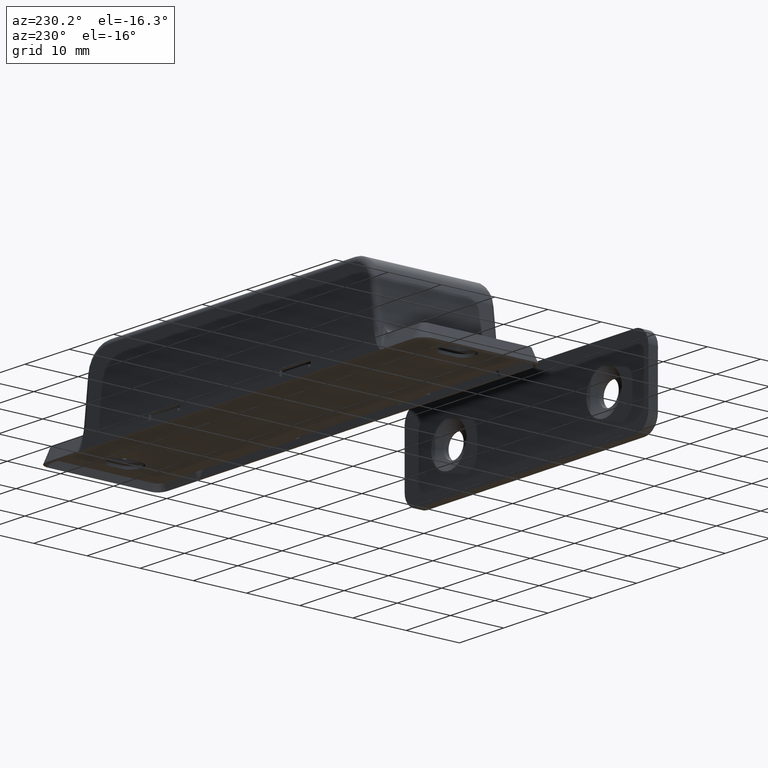
[diagram: clean part render]
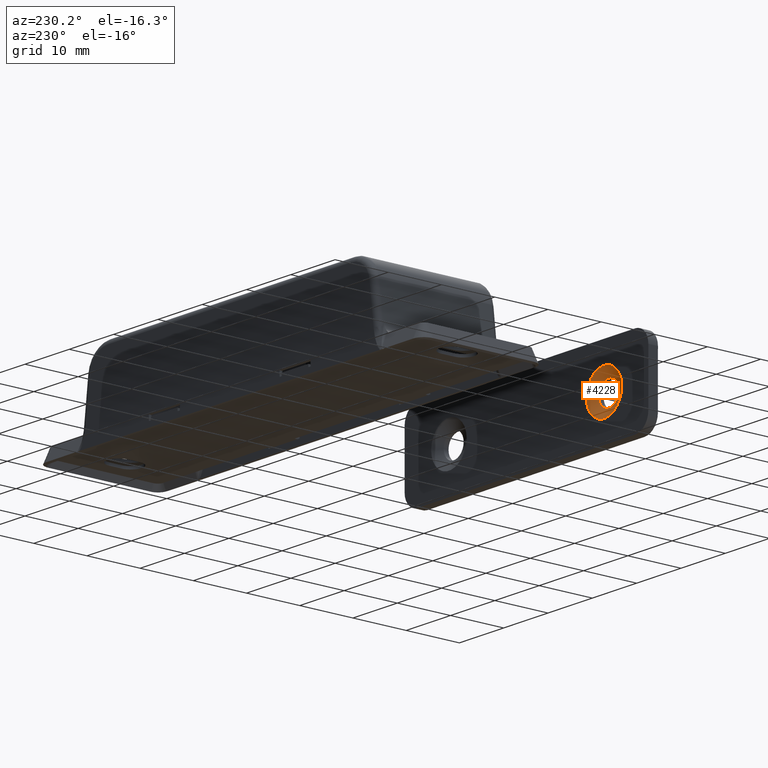
[diagram: same view with one face highlighted and labeled with its STEP entity id]
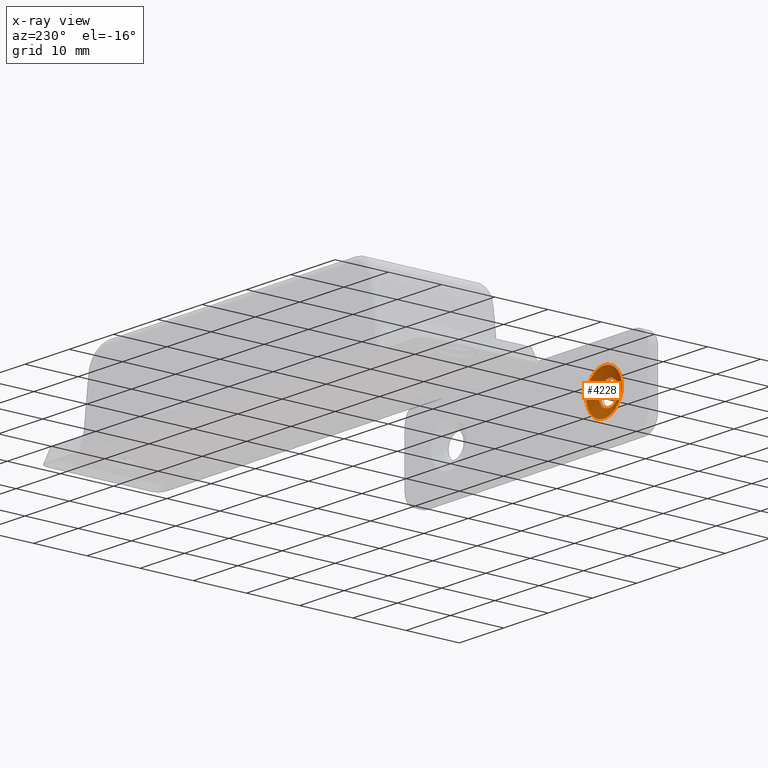
[diagram: x-ray of the same camera — body ghosted, the highlighted face saturated]
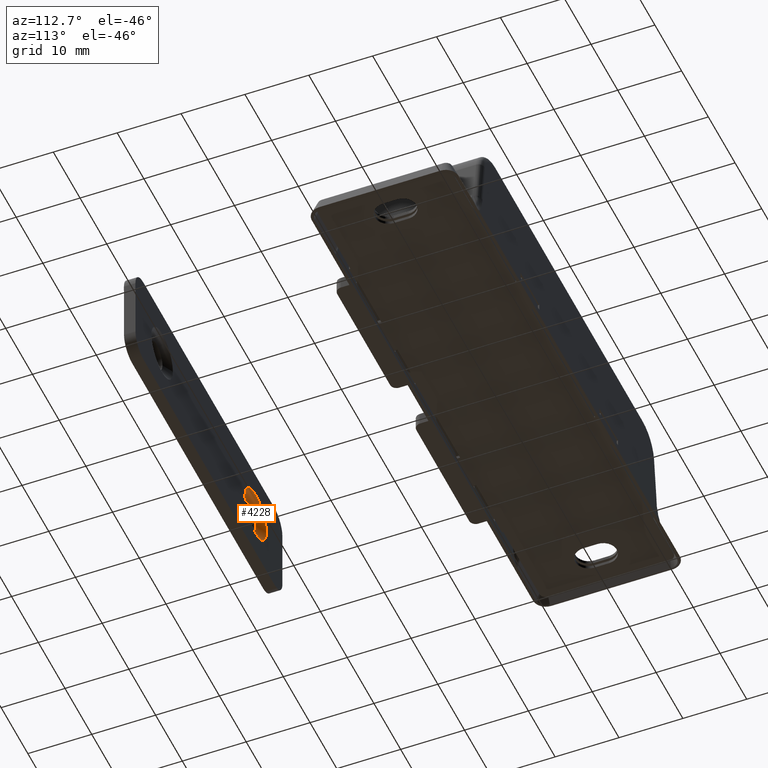
[diagram: same view with one face highlighted and labeled with its STEP entity id]
A machine part, auxiliary view. The second image highlights one B-rep face of the part: STEP entity #4228.
The next image is the same camera in x-ray: the body ghosted, the highlighted face saturated — about 0% of this face is hidden behind the body in this view.
A second angle (auxiliary view) of the same face is appended — the face is thin or edge-on in the first view.
In plain terms, the highlighted conical surface has half-angle 62.784 deg.
Its self-contained STEP definition (entity closure, byte-faithful):
#46=CONICAL_SURFACE('',#4576,3.125,1.0957855705298);
#172=FACE_BOUND('',#781,.T.);
#276=CIRCLE('',#4577,2.25);
#277=CIRCLE('',#4578,4.);
#526=FACE_OUTER_BOUND('',#780,.T.);
#780=EDGE_LOOP('',(#3768));
#781=EDGE_LOOP('',(#3769));
#2032=VERTEX_POINT('',#7861);
#2033=VERTEX_POINT('',#7863);
#2618=EDGE_CURVE('',#2032,#2032,#276,.T.);
#2619=EDGE_CURVE('',#2033,#2033,#277,.T.);
#3768=ORIENTED_EDGE('',*,*,#2618,.T.);
#3769=ORIENTED_EDGE('',*,*,#2619,.F.);
#4228=ADVANCED_FACE('',(#526,#172),#46,.F.);
#4576=AXIS2_PLACEMENT_3D('',#7860,#5644,#5645);
#4577=AXIS2_PLACEMENT_3D('',#7862,#5646,#5647);
#4578=AXIS2_PLACEMENT_3D('',#7864,#5648,#5649);
#5644=DIRECTION('center_axis',(0.,0.999999682931835,0.000796326710733486));
#5645=DIRECTION('ref_axis',(-1.,0.,0.));
#5646=DIRECTION('center_axis',(0.,-0.999999682931835,-0.000796326710733486));
#5647=DIRECTION('ref_axis',(1.,0.,0.));
#5648=DIRECTION('center_axis',(0.,-0.999999682931835,-0.000796326710733486));
#5649=DIRECTION('ref_axis',(-1.,0.,0.));
#7860=CARTESIAN_POINT('Origin',(-17.,-45.1563562980582,7.96404331246506));
#7861=CARTESIAN_POINT('',(-14.75,-45.6063561553775,7.96368496544523));
#7862=CARTESIAN_POINT('Origin',(-17.,-45.6063561553775,7.96368496544523));
#7863=CARTESIAN_POINT('',(-13.,-44.7063564407389,7.96440165948489));
#7864=CARTESIAN_POINT('Origin',(-17.,-44.7063564407389,7.96440165948489));